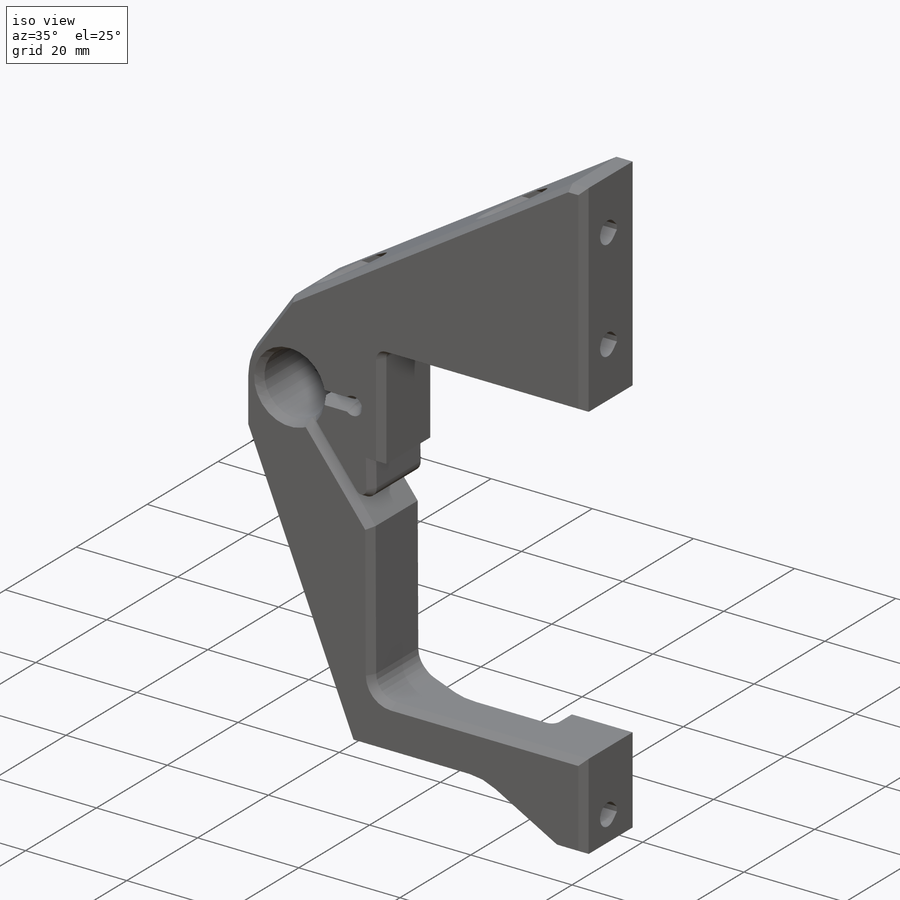
[diagram: iso view]
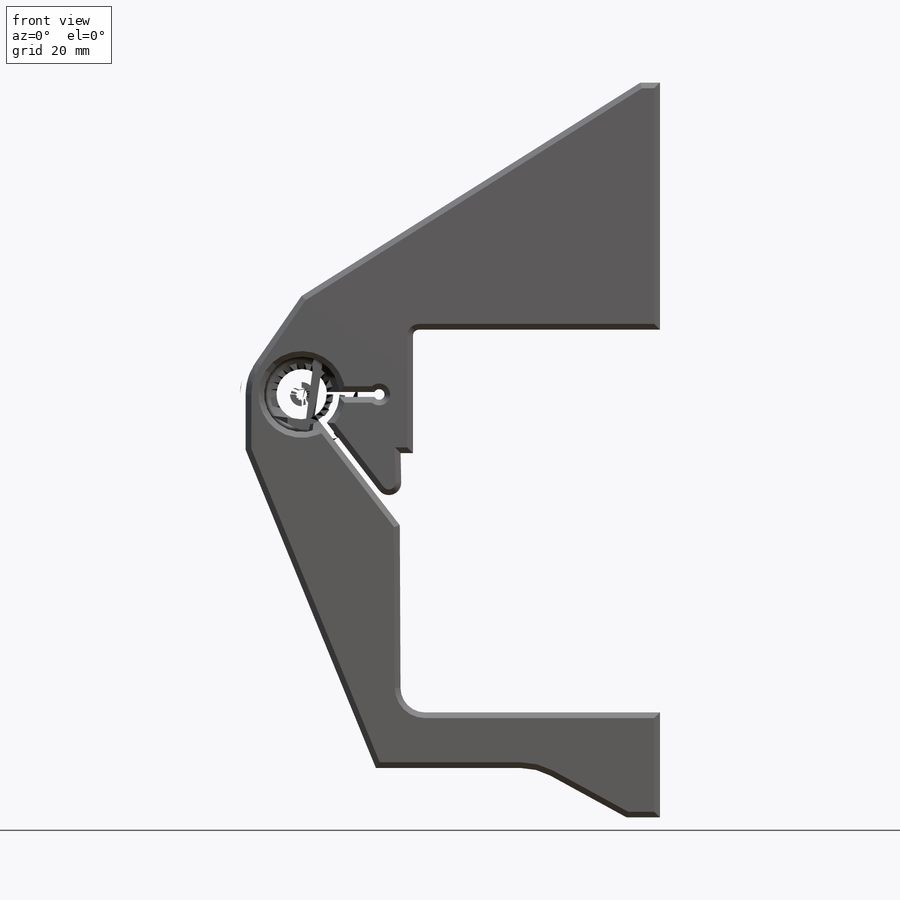
[diagram: front view]
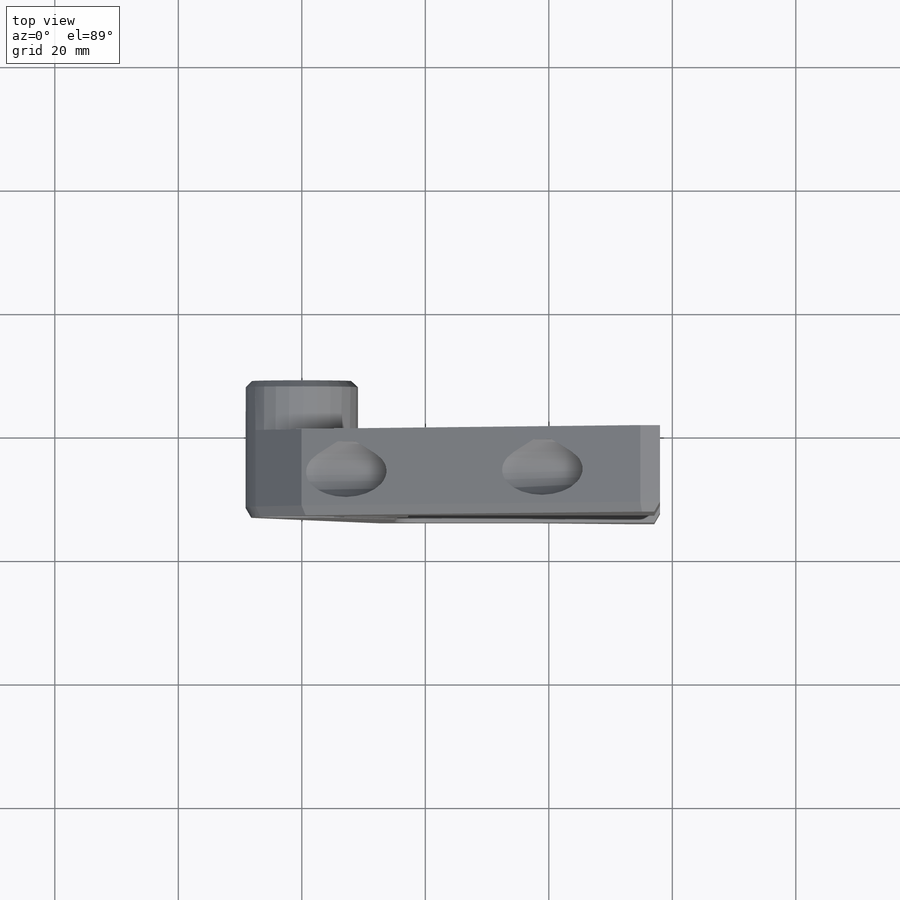
[diagram: top view]
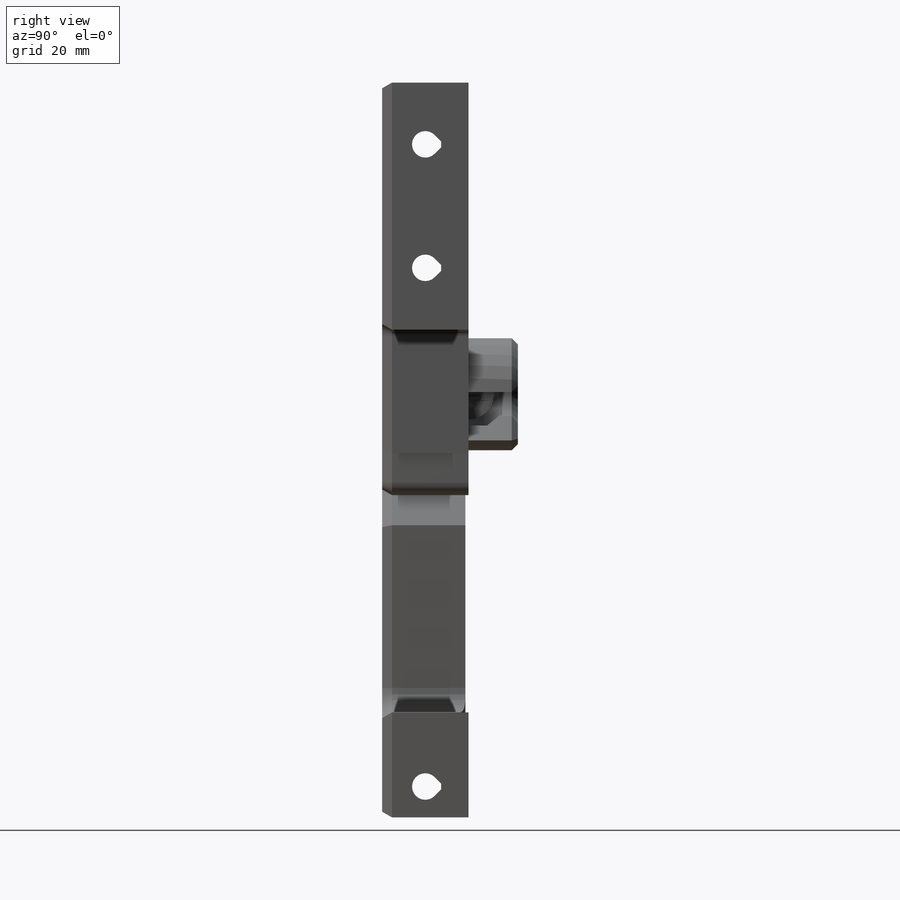
[diagram: right view]
SOLIDWORKS PART (.sldprt)
format: sldprt  version: not decoded by parser v0  size: 666,624 bytes
history: native  units: mm
features: sketch x10, cut_extrude x8, chamfer x8, fillet x5, extrude x2, material x1, plane x1 (+13 scaffold rows collapsed)
feature tree (48):
  scaffold x13  (default folders/planes/origin — collapsed)
  material  "Custom Plastic"
  sketch  "Sketch1"  dims[c1.D3=12.2mm c1.D4=12.0mm c1.D1=42.0mm c1.D2=6.0mm c1.D6=42.0mm c1.D12=6.1mm c1.D17=3.1mm c1.D23=2.0mm c2.D2=20.0mm c2.D4=3.0mm c2.D5=28.0mm c2.D6=36.0mm c2.D7=40.0mm c2.D8=38.0mm c2.D9=0.5mm c2.D1=4.0mm c3.D5=4.0mm c3.D1=42.0mm c4.D5=42.0mm c4.D10=20.0mm c4.D6=12.0mm c4.D11=10.0mm c4.D7=40.0mm c4.D12=12.0mm c4.D13=20.0mm c4.D14=5.0mm c4.D15=20.0mm c4.D16=10.0mm c5.D7=42.0mm c5.D22=~32.481442mm c6.D22=89.0deg c6.D24=10.0mm c7.D22=0.2mm c7.D24=40.0mm c7.D6=40.0mm c7.D7=0.1mm c7.D11=40.0mm c7.D14=9.0mm c7.D15=17.0mm c7.D1=3.0mm c7.D2=3.0mm c7.D18=0.4mm c7.D19=0.4mm c7.D20=0.4mm c7.D21=0.4mm]
  extrude  "Boss-Extrude1"  Depth=14mm
  sketch  "Sketch2"  dims[c1.D1=42.0mm c1.D3=4.0mm c2.D1=4.0mm c2.D2=40.0mm c2.D3=18.0mm c3.D1=28.0mm]
  cut_extrude  "Cut-Extrude1"  Depth=9mm
  sketch  "Sketch3"  dims[D1=4.3mm D2=10.0mm D3=30.0mm D4=12.0mm D5=7.0mm]
  cut_extrude  "Cut-Extrude2"  [1 undecoded]
  sketch  "Sketch4"  dims[D1=8.2mm]
  cut_extrude  "Cut-Extrude3"  Depth=7.5mm
  chamfer  "Chamfer1"  Distance=2mm Angle=45deg
  sketch  "Sketch5"
  cut_extrude  "Cut-Extrude4"  Depth=0.5mm
  sketch  "Sketch6"  dims[D1=2.0mm]
  extrude  "Boss-Extrude2"  Depth=8mm
  chamfer  "Chamfer3"  Distance=1mm Angle=45deg
  chamfer  "Chamfer4"  Distance=3mm
  chamfer  "Chamfer5"  Distance=13mm
  chamfer  "Chamfer6"  Distance=4mm
  sketch  "Sketch7"  dims[D1=0.42mm D2=0.42mm D3=0.42mm]
  cut_extrude  "Cut-Extrude5"  [1 undecoded]
  sketch  "Sketch8"  dims[D1=0.82mm D2=0.82mm D3=0.82mm D4=4.92mm]
  cut_extrude  "Cut-Extrude6"  Depth=7mm
  sketch  "Sketch9"
  cut_extrude  "Cut-Extrude7"  Depth=3mm
  chamfer  "Chamfer2"  Distance=2mm Angle=45deg
  chamfer  "Chamfer8"  Distance=4.5mm
  fillet  "Fillet1"  Radius=1.5mm
  fillet  "Fillet2"  Radius=12mm
  plane  "Plane1"
  sketch  "Sketch10"
  cut_extrude  "Cut-Extrude8"  Depth=4mm
  fillet  "Fillet3"  Radius=1mm
  fillet  "Fillet4"  Radius=4mm
  fillet  "Fillet5"  Radius=10mm
  chamfer  "Chamfer7"  Distance=1.6mm Angle=30deg
decode coverage: 28 of 33 modeling features carry decoded parameters
note: ~ marks probable driven/reference dimensions
note: 2 parameter values undecoded
note: suppression state not decoded; provenance and decode notes live in map.json
